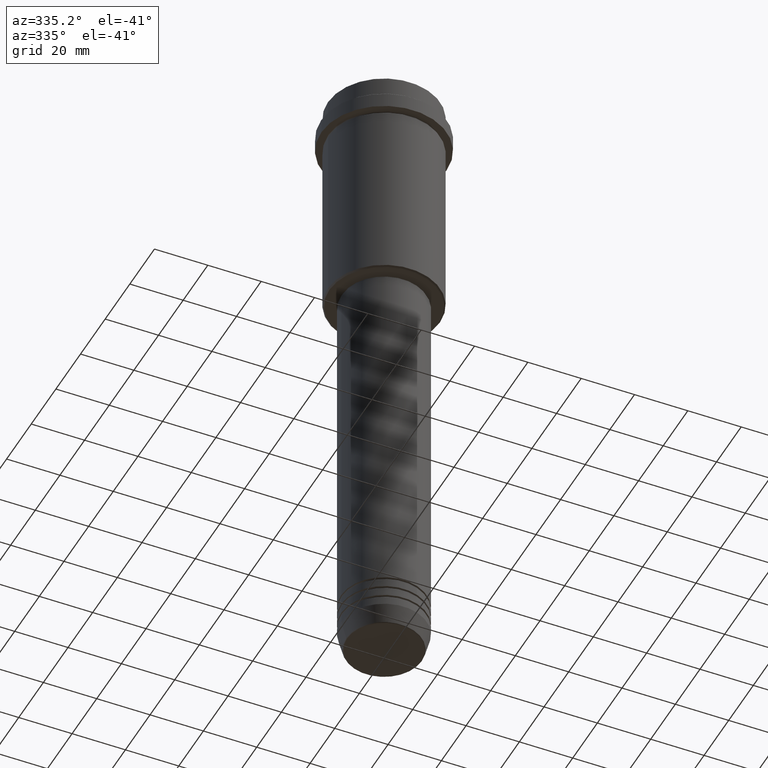
[diagram: clean part render]
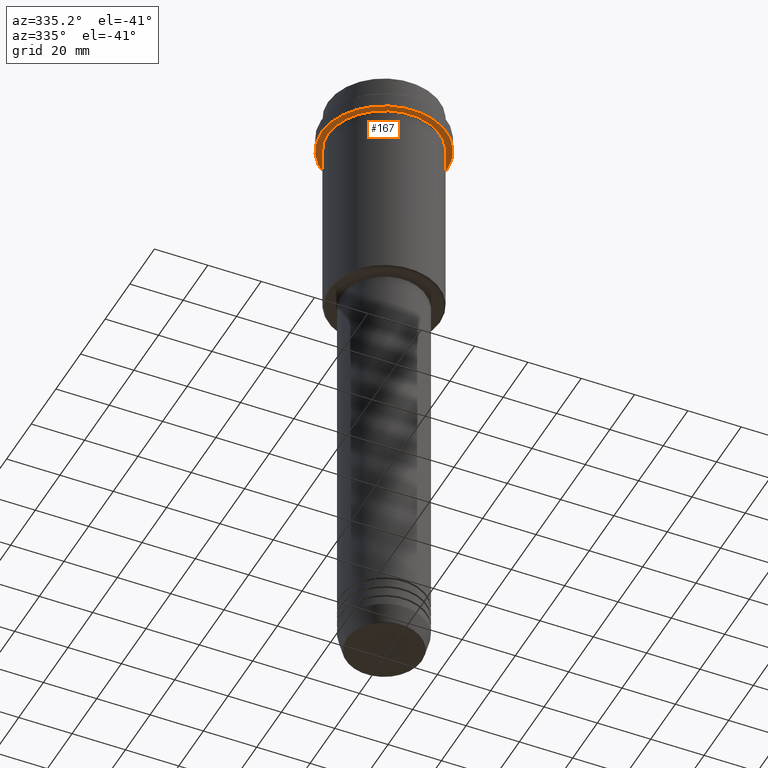
[diagram: same view with one face highlighted and labeled with its STEP entity id]
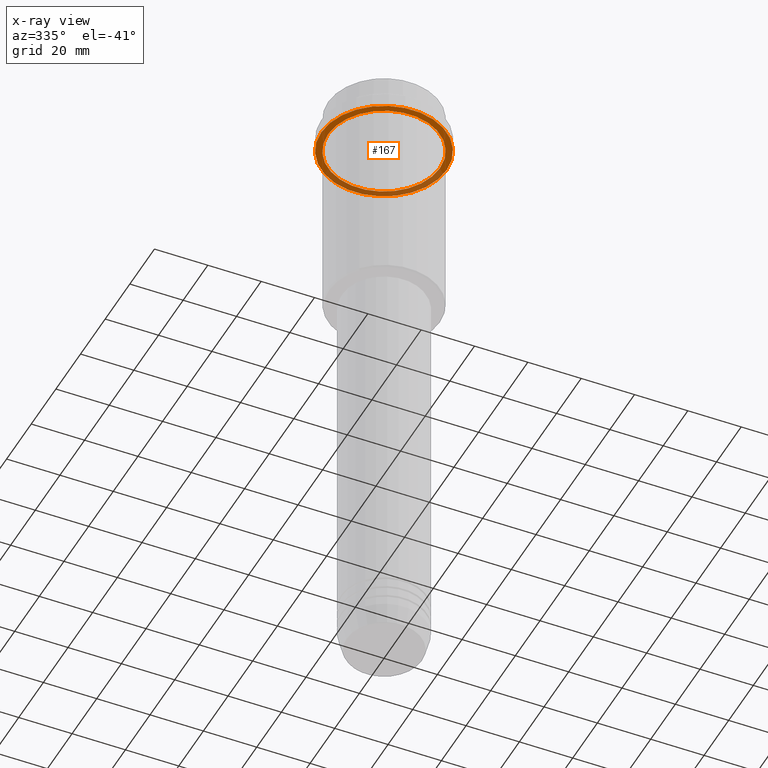
[diagram: x-ray of the same camera — body ghosted, the highlighted face saturated]
A machine part, auxiliary view. The second image highlights one B-rep face of the part: STEP entity #167.
The next image is the same camera in x-ray: the body ghosted, the highlighted face saturated — about 34% of this face is hidden behind the body in this view.
In plain terms, the highlighted planar face has unit normal (0, 0, -1).
Its self-contained STEP definition (entity closure, byte-faithful):
#96 = VERTEX_POINT ( 'NONE', #1180 ) ;
#167 = ADVANCED_FACE ( 'NONE', ( #1029, #368 ), #684, .T. ) ;
#179 = CIRCLE ( 'NONE', #490, 23.50000000000000355 ) ;
#193 = AXIS2_PLACEMENT_3D ( 'NONE', #866, #202, #1409 ) ;
#202 = DIRECTION ( 'NONE',  ( -0.000000000000000000, -0.000000000000000000, 1.000000000000000000 ) ) ;
#251 = DIRECTION ( 'NONE',  ( -0.000000000000000000, -0.000000000000000000, 1.000000000000000000 ) ) ;
#269 = CIRCLE ( 'NONE', #996, 20.99999999999999289 ) ;
#351 = DIRECTION ( 'NONE',  ( 1.000000000000000000, 0.000000000000000000, 0.000000000000000000 ) ) ;
#368 = FACE_OUTER_BOUND ( 'NONE', #825, .T. ) ;
#376 = CARTESIAN_POINT ( 'NONE',  ( -23.50000000000000711, 2.877919977996281109E-15, -15.00000000000000000 ) ) ;
#379 = DIRECTION ( 'NONE',  ( -1.000000000000000000, 0.000000000000000000, 0.000000000000000000 ) ) ;
#417 = EDGE_CURVE ( 'NONE', #797, #806, #269, .T. ) ;
#428 = CARTESIAN_POINT ( 'NONE',  ( 20.99999999999999289, 2.571758278209440872E-15, -15.00000000000000178 ) ) ;
#436 = CIRCLE ( 'NONE', #193, 20.99999999999999289 ) ;
#472 = DIRECTION ( 'NONE',  ( 0.000000000000000000, 0.000000000000000000, -1.000000000000000000 ) ) ;
#490 = AXIS2_PLACEMENT_3D ( 'NONE', #1034, #251, #351 ) ;
#551 = ORIENTED_EDGE ( 'NONE', *, *, #798, .F. ) ;
#562 = ORIENTED_EDGE ( 'NONE', *, *, #1292, .T. ) ;
#582 = CIRCLE ( 'NONE', #719, 23.50000000000000355 ) ;
#626 = EDGE_CURVE ( 'NONE', #904, #96, #179, .T. ) ;
#637 = EDGE_LOOP ( 'NONE', ( #852, #562 ) ) ;
#684 = PLANE ( 'NONE',  #995 ) ;
#685 = ORIENTED_EDGE ( 'NONE', *, *, #626, .F. ) ;
#719 = AXIS2_PLACEMENT_3D ( 'NONE', #1189, #874, #1202 ) ;
#737 = CARTESIAN_POINT ( 'NONE',  ( -20.99999999999999289, 0.000000000000000000, -15.00000000000000178 ) ) ;
#793 = DIRECTION ( 'NONE',  ( -1.000000000000000000, 0.000000000000000000, -0.000000000000000000 ) ) ;
#797 = VERTEX_POINT ( 'NONE', #737 ) ;
#798 = EDGE_CURVE ( 'NONE', #96, #904, #582, .T. ) ;
#806 = VERTEX_POINT ( 'NONE', #428 ) ;
#815 = CARTESIAN_POINT ( 'NONE',  ( 0.000000000000000000, 0.000000000000000000, -15.00000000000000178 ) ) ;
#817 = CARTESIAN_POINT ( 'NONE',  ( 0.000000000000000000, 23.50000000000000355, -15.00000000000000178 ) ) ;
#825 = EDGE_LOOP ( 'NONE', ( #551, #685 ) ) ;
#852 = ORIENTED_EDGE ( 'NONE', *, *, #417, .T. ) ;
#866 = CARTESIAN_POINT ( 'NONE',  ( 0.000000000000000000, 0.000000000000000000, -15.00000000000000178 ) ) ;
#874 = DIRECTION ( 'NONE',  ( -0.000000000000000000, -0.000000000000000000, 1.000000000000000000 ) ) ;
#904 = VERTEX_POINT ( 'NONE', #376 ) ;
#995 = AXIS2_PLACEMENT_3D ( 'NONE', #817, #472, #793 ) ;
#996 = AXIS2_PLACEMENT_3D ( 'NONE', #815, #1010, #379 ) ;
#1010 = DIRECTION ( 'NONE',  ( -0.000000000000000000, -0.000000000000000000, 1.000000000000000000 ) ) ;
#1029 = FACE_BOUND ( 'NONE', #637, .T. ) ;
#1034 = CARTESIAN_POINT ( 'NONE',  ( 0.000000000000000000, 0.000000000000000000, -15.00000000000000000 ) ) ;
#1180 = CARTESIAN_POINT ( 'NONE',  ( 23.50000000000000355, 0.000000000000000000, -15.00000000000000000 ) ) ;
#1189 = CARTESIAN_POINT ( 'NONE',  ( 0.000000000000000000, 0.000000000000000000, -15.00000000000000000 ) ) ;
#1202 = DIRECTION ( 'NONE',  ( 1.000000000000000000, 0.000000000000000000, 0.000000000000000000 ) ) ;
#1292 = EDGE_CURVE ( 'NONE', #806, #797, #436, .T. ) ;
#1409 = DIRECTION ( 'NONE',  ( -1.000000000000000000, 0.000000000000000000, 0.000000000000000000 ) ) ;